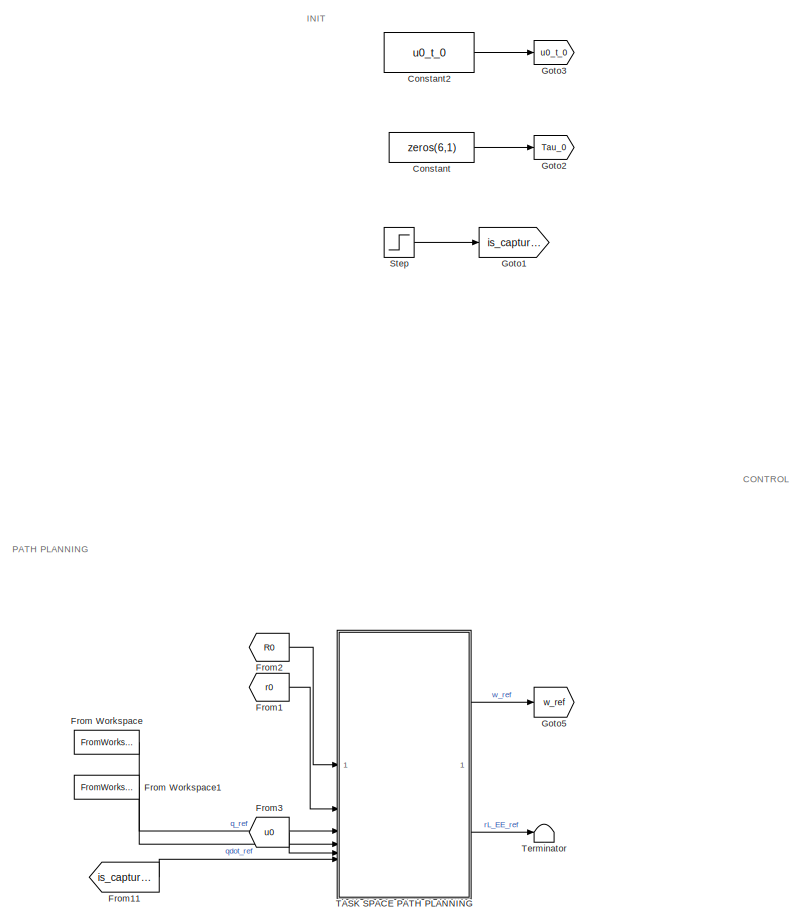
[diagram: root canvas - part 1/3, left side, full height]
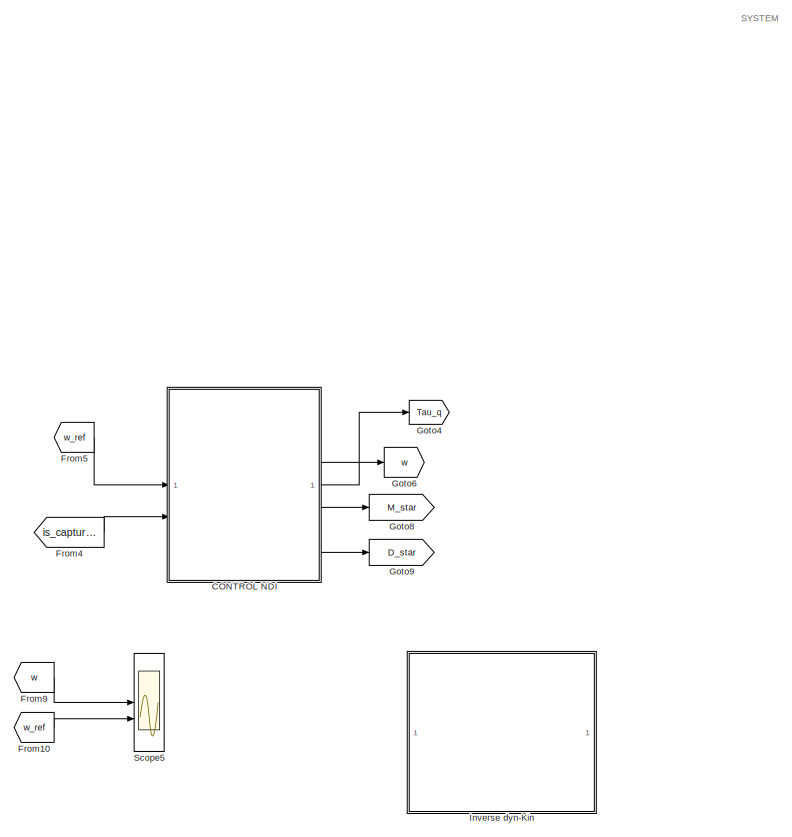
[diagram: root canvas - part 2/3, center side, full height]
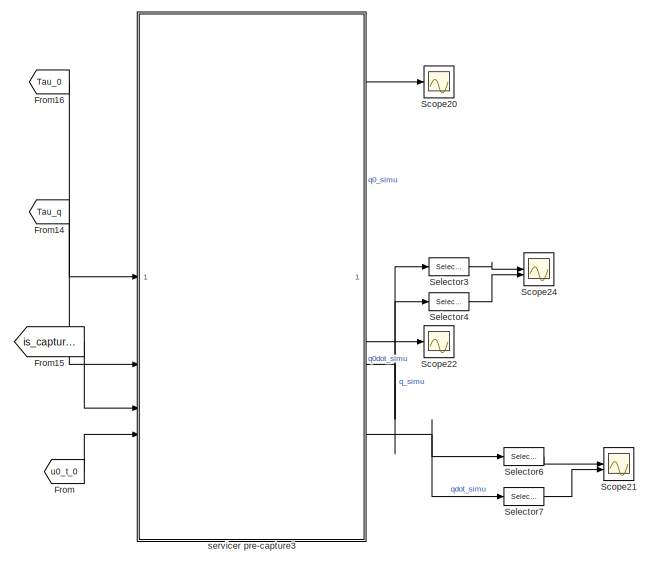
[diagram: root canvas - part 3/3, middle right region]
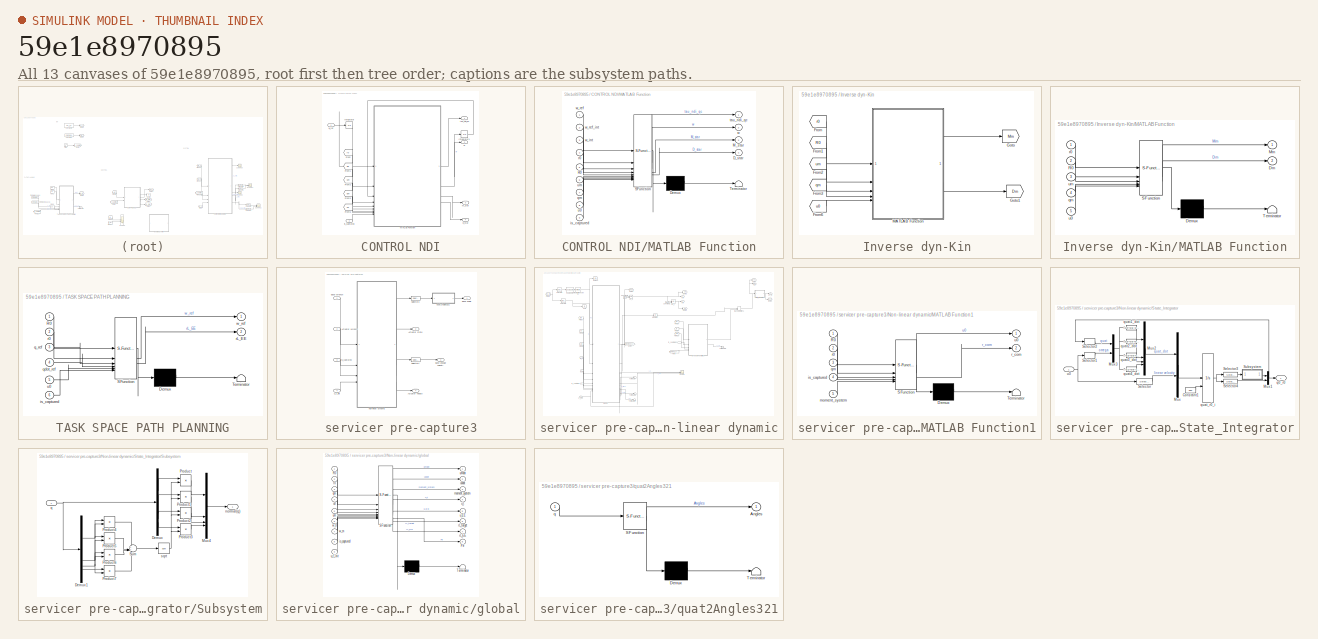
[diagram: thumbnail index - all 13 canvases of the model, root first then tree order]
MODEL slx_59e1e8970895
KIND model
CONFIG AbsTol = auto
CONFIG EnableMultiTasking = off
CONFIG FixedStep = auto
CONFIG MaxStep = auto
CONFIG MinStep = auto
CONFIG RelTol = 1e-3
CONFIG SampleTimeConstraint = Unconstrained
CONFIG SolverName = FixedStepAuto
CONFIG StartTime = 0.0
CONFIG StopTime = 3500
BLOCK [SubSystem] CONTROL NDI
BLOCK [Outport] CONTROL NDI/D_star
  Port = 4
BLOCK [From] CONTROL NDI/From
  GotoTag = r0
  TagVisibility = global
BLOCK [From] CONTROL NDI/From1
  GotoTag = R0
  TagVisibility = global
BLOCK [From] CONTROL NDI/From2
  GotoTag = um
  TagVisibility = global
BLOCK [From] CONTROL NDI/From3
  GotoTag = qm
  TagVisibility = global
BLOCK [From] CONTROL NDI/From6
  GotoTag = u0
  TagVisibility = global
BLOCK [Integrator] CONTROL NDI/Integrator
BLOCK [Integrator] CONTROL NDI/Integrator1
BLOCK [SubSystem] CONTROL NDI/MATLAB Function
  ErrorFcn = Stateflow.Translate.translate
  PermitHierarchicalResolution = ExplicitOnly
  SFBlockType = MATLAB Function
  TreatAsAtomicUnit = on
BLOCK [Demux] CONTROL NDI/MATLAB Function/ Demux 
  Outputs = 1
BLOCK [S-Function] CONTROL NDI/MATLAB Function/ SFunction 
  EnableBusSupport = on
  FunctionName = sf_sfun
  Parameters = robot_unc_post,robot_unc_pre
  PortCounts = [9 5]
  SFcnIsStateOwnerBlock = off
  SFunctionDeploymentMode = off
  Tag = Stateflow S-Function 2
BLOCK [Terminator] CONTROL NDI/MATLAB Function/ Terminator 
BLOCK [Outport] CONTROL NDI/MATLAB Function/D_star
  Port = 4
BLOCK [Outport] CONTROL NDI/MATLAB Function/M_star
  Port = 3
BLOCK [Inport] CONTROL NDI/MATLAB Function/R0
  Port = 5
BLOCK [Inport] CONTROL NDI/MATLAB Function/is_captured
  Port = 9
BLOCK [Inport] CONTROL NDI/MATLAB Function/qm
  Port = 7
BLOCK [Inport] CONTROL NDI/MATLAB Function/r0
  Port = 4
BLOCK [Outport] CONTROL NDI/MATLAB Function/tau_ndi_qc
BLOCK [Inport] CONTROL NDI/MATLAB Function/u0
  Port = 8
BLOCK [Inport] CONTROL NDI/MATLAB Function/um
  Port = 6
BLOCK [Outport] CONTROL NDI/MATLAB Function/w
  Port = 2
BLOCK [Inport] CONTROL NDI/MATLAB Function/w_int
  Port = 3
BLOCK [Inport] CONTROL NDI/MATLAB Function/w_ref
BLOCK [Inport] CONTROL NDI/MATLAB Function/w_ref_int
  Port = 2
BLOCK [Outport] CONTROL NDI/M_star
  Port = 3
BLOCK [Inport] CONTROL NDI/is_captured
  Port = 2
BLOCK [Outport] CONTROL NDI/tau_ndi_qc
BLOCK [Outport] CONTROL NDI/w
  Port = 2
BLOCK [Inport] CONTROL NDI/w_ref
BLOCK [Constant] Constant
  Value = zeros(6,1)
BLOCK [Constant] Constant2
  Value = u0_t_0
BLOCK [From] From
  GotoTag = u0_t_0
BLOCK [FromWorkspace] From Workspace
  VariableName = qm_ref_simu
BLOCK [FromWorkspace] From Workspace1
  VariableName = qmdot_ref_simu
BLOCK [From] From1
  GotoTag = r0
  TagVisibility = global
BLOCK [From] From10
  GotoTag = w_ref
BLOCK [From] From11
  GotoTag = is_captured
BLOCK [From] From14
  GotoTag = Tau_q
BLOCK [From] From15
  GotoTag = is_captured
BLOCK [From] From16
  GotoTag = Tau_0
BLOCK [From] From2
  GotoTag = R0
  TagVisibility = global
BLOCK [From] From3
  GotoTag = u0
  TagVisibility = global
BLOCK [From] From4
  GotoTag = is_captured
BLOCK [From] From5
  GotoTag = w_ref
BLOCK [From] From9
  GotoTag = w
BLOCK [Goto] Goto1
  GotoTag = is_captured
BLOCK [Goto] Goto2
  GotoTag = Tau_0
BLOCK [Goto] Goto3
  GotoTag = u0_t_0
BLOCK [Goto] Goto4
  GotoTag = Tau_q
BLOCK [Goto] Goto5
  GotoTag = w_ref
BLOCK [Goto] Goto6
  GotoTag = w
BLOCK [Goto] Goto8
  GotoTag = M_star
BLOCK [Goto] Goto9
  GotoTag = D_star
BLOCK [SubSystem] Inverse dyn-Kin
  Commented = on
BLOCK [From] Inverse dyn-Kin/From
  GotoTag = r0
  TagVisibility = global
BLOCK [From] Inverse dyn-Kin/From1
  GotoTag = R0
  TagVisibility = global
BLOCK [From] Inverse dyn-Kin/From2
  GotoTag = um
  TagVisibility = global
BLOCK [From] Inverse dyn-Kin/From3
  GotoTag = qm
  TagVisibility = global
BLOCK [From] Inverse dyn-Kin/From6
  GotoTag = u0
  TagVisibility = global
BLOCK [Goto] Inverse dyn-Kin/Goto
  GotoTag = Mm
  TagVisibility = global
BLOCK [Goto] Inverse dyn-Kin/Goto1
  GotoTag = Dm
  TagVisibility = global
BLOCK [SubSystem] Inverse dyn-Kin/MATLAB Function
  ErrorFcn = Stateflow.Translate.translate
  PermitHierarchicalResolution = ExplicitOnly
  SFBlockType = MATLAB Function
  TreatAsAtomicUnit = on
BLOCK [Demux] Inverse dyn-Kin/MATLAB Function/ Demux 
  Outputs = 1
BLOCK [S-Function] Inverse dyn-Kin/MATLAB Function/ SFunction 
  EnableBusSupport = on
  FunctionName = sf_sfun
  Parameters = robot_unc
  PortCounts = [5 3]
  SFcnIsStateOwnerBlock = off
  SFunctionDeploymentMode = off
  Tag = Stateflow S-Function 1
BLOCK [Terminator] Inverse dyn-Kin/MATLAB Function/ Terminator 
BLOCK [Outport] Inverse dyn-Kin/MATLAB Function/Dm
  Port = 2
  VectorParamsAs1DForOutWhenUnconnected = off
BLOCK [Outport] Inverse dyn-Kin/MATLAB Function/Mm
  VectorParamsAs1DForOutWhenUnconnected = off
BLOCK [Inport] Inverse dyn-Kin/MATLAB Function/R0
  Port = 2
BLOCK [Inport] Inverse dyn-Kin/MATLAB Function/qm
  Port = 4
BLOCK [Inport] Inverse dyn-Kin/MATLAB Function/r0
BLOCK [Inport] Inverse dyn-Kin/MATLAB Function/u0
  Port = 5
BLOCK [Inport] Inverse dyn-Kin/MATLAB Function/um
  Port = 3
BLOCK [Scope] Scope20
  Floating = off
  NumInputPorts = 1
  ScopeSpecificationString = Simulink.scopes.TimeScopeBlockCfg('CurrentConfiguration', extmgr.ConfigurationSet(extmgr.Configuration('Core','General UI',true),extmgr.Configuration('Core','Source UI',true),extmgr.Configuration('Sources','WiredSimulink',true,'DataLoggingVariableName','ScopeData17'),extmgr.Configuration('Visuals','Time Domain',true,'SerializedDisplays',{struct('MinYLimReal','-0.46504','MaxYLimReal','0.14301','YLa...<+1393ch>
BLOCK [Scope] Scope21
  Floating = off
  NumInputPorts = 2
  ScopeSpecificationString = Simulink.scopes.TimeScopeBlockCfg('CurrentConfiguration', extmgr.ConfigurationSet(extmgr.Configuration('Core','General UI',true),extmgr.Configuration('Core','Source UI',true),extmgr.Configuration('Sources','WiredSimulink',true,'DataLoggingVariableName','ScopeData2'),extmgr.Configuration('Visuals','Time Domain',true,'SerializedDisplays',{struct('MinYLimReal','-1183902.62281','MaxYLimReal','10653502...<+2206ch>
BLOCK [Scope] Scope22
  Floating = off
  NumInputPorts = 1
  ScopeSpecificationString = Simulink.scopes.TimeScopeBlockCfg('CurrentConfiguration', extmgr.ConfigurationSet(extmgr.Configuration('Core','General UI',true),extmgr.Configuration('Core','Source UI',true),extmgr.Configuration('Sources','WiredSimulink',true,'DataLoggingVariableName','ScopeData20'),extmgr.Configuration('Visuals','Time Domain',true,'SerializedDisplays',{struct('MinYLimReal','-0.000007','MaxYLimReal','0.000005','Y...<+1444ch>
BLOCK [Scope] Scope24
  Floating = off
  NumInputPorts = 2
  ScopeSpecificationString = Simulink.scopes.TimeScopeBlockCfg('CurrentConfiguration', extmgr.ConfigurationSet(extmgr.Configuration('Core','General UI',true),extmgr.Configuration('Core','Source UI',true),extmgr.Configuration('Sources','WiredSimulink',true,'DataLoggingVariableName','ScopeData1'),extmgr.Configuration('Visuals','Time Domain',true,'SerializedDisplays',{struct('MinYLimReal','-937.50116','MaxYLimReal','8437.51043',...<+2139ch>
BLOCK [Scope] Scope5
  Floating = off
  NumInputPorts = 2
  ScopeSpecificationString = Simulink.scopes.TimeScopeBlockCfg('CurrentConfiguration', extmgr.ConfigurationSet(extmgr.Configuration('Core','General UI',true),extmgr.Configuration('Core','Source UI',true),extmgr.Configuration('Sources','WiredSimulink',true,'DataLoggingVariableName','ScopeData1'),extmgr.Configuration('Visuals','Time Domain',true,'SerializedDisplays',{struct('MinYLimReal','-0.00051','MaxYLimReal','0.00028','YLab...<+2106ch>
BLOCK [Selector] Selector3
  IndexOptions = Index vector (dialog)
  Indices = [1:dim_r]
  OutputSizes = 1
BLOCK [Selector] Selector4
  IndexOptions = Index vector (dialog)
  Indices = [dim_r+1:dim_q]
  OutputSizes = 1
BLOCK [Selector] Selector6
  IndexOptions = Index vector (dialog)
  Indices = [1:dim_r]
  OutputSizes = 1
BLOCK [Selector] Selector7
  IndexOptions = Index vector (dialog)
  Indices = [dim_r+1:dim_q]
  OutputSizes = 1
BLOCK [Step] Step
  SampleTime = 0
  Time = 2050
BLOCK [SubSystem] TASK SPACE PATH PLANNING
  ErrorFcn = Stateflow.Translate.translate
  PermitHierarchicalResolution = ExplicitOnly
  SFBlockType = MATLAB Function
  TreatAsAtomicUnit = on
BLOCK [Demux] TASK SPACE PATH PLANNING/ Demux 
  Outputs = 1
BLOCK [S-Function] TASK SPACE PATH PLANNING/ SFunction 
  EnableBusSupport = on
  FunctionName = sf_sfun
  Parameters = robot_pre_sim
  PortCounts = [6 3]
  SFcnIsStateOwnerBlock = off
  SFunctionDeploymentMode = off
  Tag = Stateflow S-Function 3
BLOCK [Terminator] TASK SPACE PATH PLANNING/ Terminator 
BLOCK [Inport] TASK SPACE PATH PLANNING/R0
BLOCK [Inport] TASK SPACE PATH PLANNING/is_captured
  Port = 6
BLOCK [Inport] TASK SPACE PATH PLANNING/q_ref
  Port = 3
BLOCK [Inport] TASK SPACE PATH PLANNING/qdot_ref
  Port = 4
BLOCK [Inport] TASK SPACE PATH PLANNING/r0
  Port = 2
BLOCK [Outport] TASK SPACE PATH PLANNING/rL_EE
  Port = 2
BLOCK [Inport] TASK SPACE PATH PLANNING/u0
  Port = 5
BLOCK [Outport] TASK SPACE PATH PLANNING/w_ref
BLOCK [Terminator] Terminator
BLOCK [SubSystem] servicer pre-capture3
BLOCK [Inport] servicer pre-capture3/Actuator Wrench
  Port = 2
BLOCK [Outport] servicer pre-capture3/Actuator state
  Port = 2
  VectorParamsAs1DForOutWhenUnconnected = off
BLOCK [Outport] servicer pre-capture3/Actuator velocity
  Port = 4
  VectorParamsAs1DForOutWhenUnconnected = off
BLOCK [Inport] servicer pre-capture3/Base Wrench
BLOCK [Outport] servicer pre-capture3/Base angle
  VectorParamsAs1DForOutWhenUnconnected = off
BLOCK [Outport] servicer pre-capture3/Base angular velocity
  Port = 3
  VectorParamsAs1DForOutWhenUnconnected = off
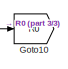
[diagram: servicer pre-capture3/Non-linear dynamic - part 1/3, top left region]
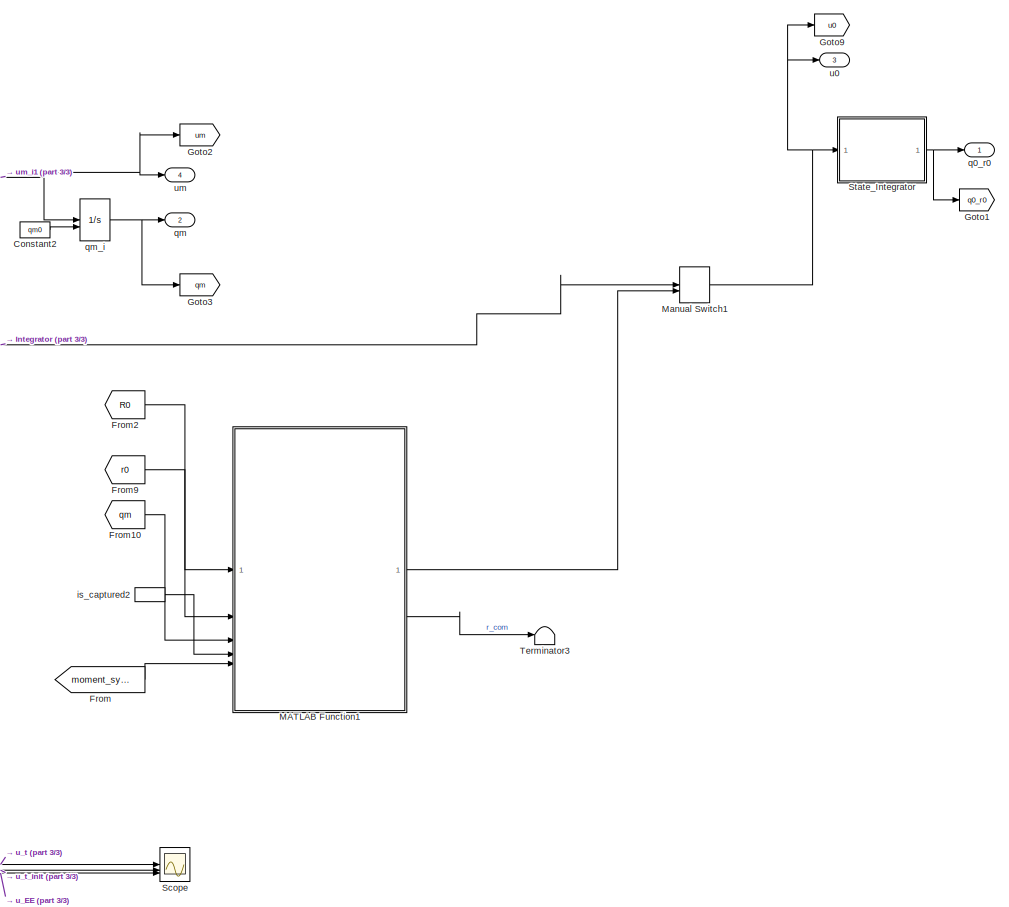
[diagram: servicer pre-capture3/Non-linear dynamic - part 2/3, middle right region]
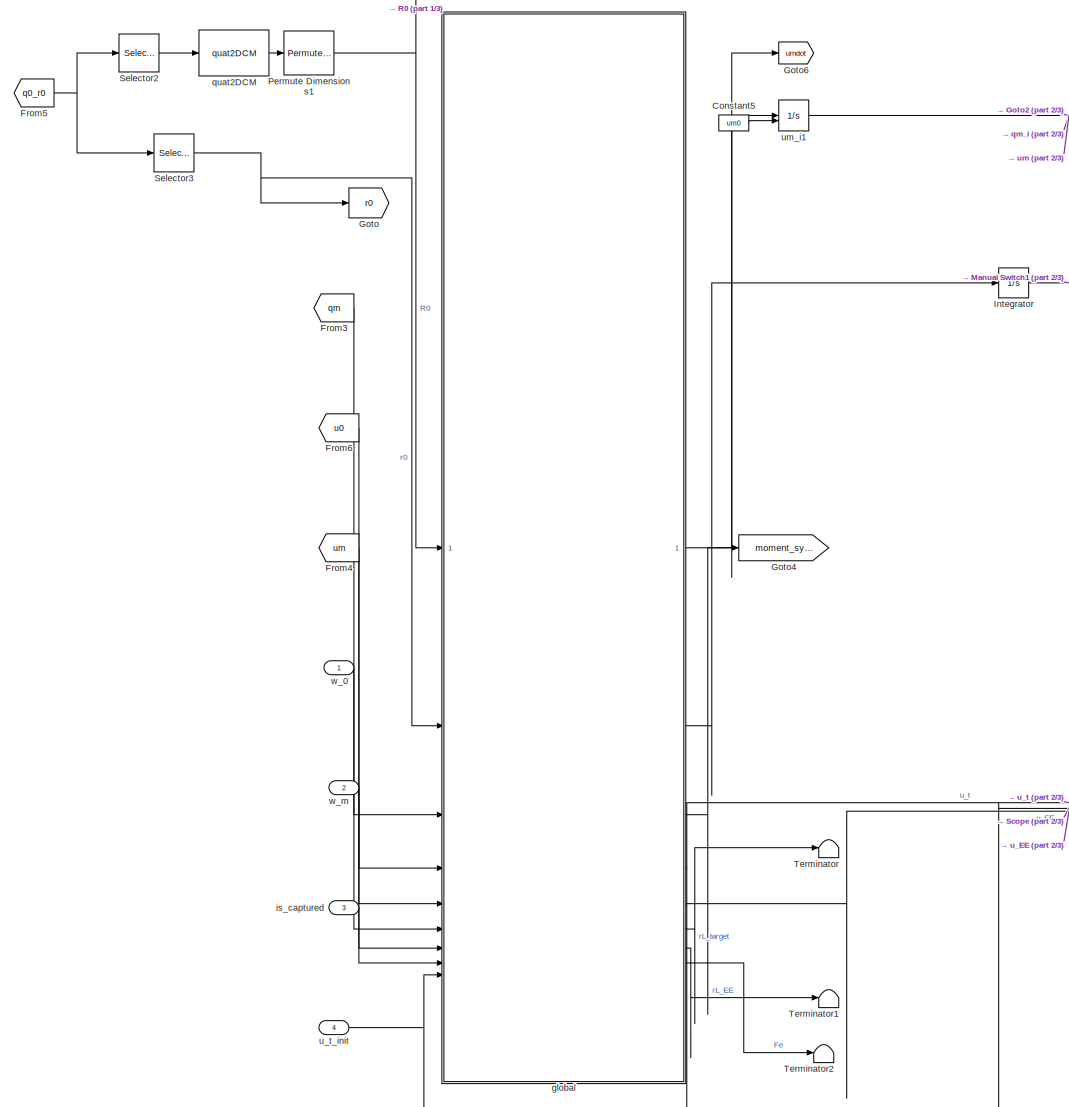
[diagram: servicer pre-capture3/Non-linear dynamic - part 3/3, left side, full height]
BLOCK [SubSystem] servicer pre-capture3/Non-linear dynamic
BLOCK [Constant] servicer pre-capture3/Non-linear dynamic/Constant2
  Value = qm0
BLOCK [Constant] servicer pre-capture3/Non-linear dynamic/Constant5
  Value = um0
BLOCK [From] servicer pre-capture3/Non-linear dynamic/From
  GotoTag = moment_system
BLOCK [From] servicer pre-capture3/Non-linear dynamic/From10
  GotoTag = qm
  TagVisibility = global
BLOCK [From] servicer pre-capture3/Non-linear dynamic/From2
  GotoTag = R0
  TagVisibility = global
BLOCK [From] servicer pre-capture3/Non-linear dynamic/From3
  GotoTag = qm
  TagVisibility = global
BLOCK [From] servicer pre-capture3/Non-linear dynamic/From4
  GotoTag = um
  TagVisibility = global
BLOCK [From] servicer pre-capture3/Non-linear dynamic/From5
  GotoTag = q0_r0
BLOCK [From] servicer pre-capture3/Non-linear dynamic/From6
  GotoTag = u0
  TagVisibility = global
BLOCK [From] servicer pre-capture3/Non-linear dynamic/From9
  GotoTag = r0
  TagVisibility = global
BLOCK [Goto] servicer pre-capture3/Non-linear dynamic/Goto
  GotoTag = r0
  TagVisibility = global
BLOCK [Goto] servicer pre-capture3/Non-linear dynamic/Goto1
  GotoTag = q0_r0
BLOCK [Goto] servicer pre-capture3/Non-linear dynamic/Goto10
  GotoTag = R0
  TagVisibility = global
BLOCK [Goto] servicer pre-capture3/Non-linear dynamic/Goto2
  GotoTag = um
  TagVisibility = global
BLOCK [Goto] servicer pre-capture3/Non-linear dynamic/Goto3
  GotoTag = qm
  TagVisibility = global
BLOCK [Goto] servicer pre-capture3/Non-linear dynamic/Goto4
  GotoTag = moment_system
BLOCK [Goto] servicer pre-capture3/Non-linear dynamic/Goto6
  GotoTag = umdot
  TagVisibility = global
BLOCK [Goto] servicer pre-capture3/Non-linear dynamic/Goto9
  GotoTag = u0
  TagVisibility = global
BLOCK [Integrator] servicer pre-capture3/Non-linear dynamic/Integrator
BLOCK [SubSystem] servicer pre-capture3/Non-linear dynamic/MATLAB Function1
  ErrorFcn = Stateflow.Translate.translate
  PermitHierarchicalResolution = ExplicitOnly
  SFBlockType = MATLAB Function
  TreatAsAtomicUnit = on
BLOCK [Demux] servicer pre-capture3/Non-linear dynamic/MATLAB Function1/ Demux 
  Outputs = 1
BLOCK [S-Function] servicer pre-capture3/Non-linear dynamic/MATLAB Function1/ SFunction 
  EnableBusSupport = on
  FunctionName = sf_sfun
  Parameters = robot_post_sim,robot_pre_sim
  PortCounts = [5 3]
  SFcnIsStateOwnerBlock = off
  SFunctionDeploymentMode = off
  Tag = Stateflow S-Function 14
BLOCK [Terminator] servicer pre-capture3/Non-linear dynamic/MATLAB Function1/ Terminator 
BLOCK [Inport] servicer pre-capture3/Non-linear dynamic/MATLAB Function1/R0
BLOCK [Inport] servicer pre-capture3/Non-linear dynamic/MATLAB Function1/is_captured
  Port = 4
BLOCK [Inport] servicer pre-capture3/Non-linear dynamic/MATLAB Function1/moment_system
  Port = 5
BLOCK [Inport] servicer pre-capture3/Non-linear dynamic/MATLAB Function1/qm
  Port = 3
BLOCK [Inport] servicer pre-capture3/Non-linear dynamic/MATLAB Function1/r0
  Port = 2
BLOCK [Outport] servicer pre-capture3/Non-linear dynamic/MATLAB Function1/r_com
  Port = 2
BLOCK [Outport] servicer pre-capture3/Non-linear dynamic/MATLAB Function1/u0
  VectorParamsAs1DForOutWhenUnconnected = off
BLOCK [ManualSwitch] servicer pre-capture3/Non-linear dynamic/Manual Switch1
  CurrentSetting = 0
BLOCK [PermuteDimensions] servicer pre-capture3/Non-linear dynamic/Permute Dimensions1
BLOCK [Scope] servicer pre-capture3/Non-linear dynamic/Scope
  Floating = off
  NumInputPorts = 3
  ScopeSpecificationString = Simulink.scopes.TimeScopeBlockCfg('CurrentConfiguration', extmgr.ConfigurationSet(extmgr.Configuration('Core','General UI',true),extmgr.Configuration('Core','Source UI',true),extmgr.Configuration('Sources','WiredSimulink',true,'DataLoggingVariableName','ScopeData18'),extmgr.Configuration('Visuals','Time Domain',true,'SerializedDisplays',{struct('MinYLimReal','-0.00051','MaxYLimReal','0.00028','YLa...<+2029ch>
BLOCK [Selector] servicer pre-capture3/Non-linear dynamic/Selector2
  IndexOptions = Index vector (dialog)
  Indices = [1:4]
  InputPortWidth = 7
  OutputSizes = 1
BLOCK [Selector] servicer pre-capture3/Non-linear dynamic/Selector3
  IndexOptions = Index vector (dialog)
  Indices = [5:7]
  InputPortWidth = 7
  OutputSizes = 1
BLOCK [SubSystem] servicer pre-capture3/Non-linear dynamic/State_Integrator
  AncestorBlock = SPART_Lib/Plant/State_Integrator
BLOCK [Constant] servicer pre-capture3/Non-linear dynamic/State_Integrator/Constant1
  Value = q00
BLOCK [Mux] servicer pre-capture3/Non-linear dynamic/State_Integrator/Mux
  DisplayOption = bar
  Inputs = 2
BLOCK [Mux] servicer pre-capture3/Non-linear dynamic/State_Integrator/Mux1
  DisplayOption = bar
  Inputs = 2
BLOCK [Mux] servicer pre-capture3/Non-linear dynamic/State_Integrator/Mux2
  DisplayOption = bar
BLOCK [Mux] servicer pre-capture3/Non-linear dynamic/State_Integrator/Mux3
  DisplayOption = bar
  Inputs = 2
BLOCK [Selector] servicer pre-capture3/Non-linear dynamic/State_Integrator/Selector
  IndexOptions = Index vector (dialog)
  Indices = [4:6]
  InputPortWidth = 6
  OutputSizes = 1
BLOCK [Selector] servicer pre-capture3/Non-linear dynamic/State_Integrator/Selector1
  IndexOptions = Index vector (dialog)
  Indices = [1:3]
  InputPortWidth = 6
  OutputSizes = 1
BLOCK [Selector] servicer pre-capture3/Non-linear dynamic/State_Integrator/Selector2
  IndexOptions = Index vector (dialog)
  Indices = [1:4]
  InputPortWidth = 7
  OutputSizes = 1
BLOCK [Selector] servicer pre-capture3/Non-linear dynamic/State_Integrator/Selector3
  IndexOptions = Index vector (dialog)
  Indices = [1:4]
  InputPortWidth = 7
  OutputSizes = 1
BLOCK [Selector] servicer pre-capture3/Non-linear dynamic/State_Integrator/Selector4
  IndexOptions = Index vector (dialog)
  Indices = [5:7]
  InputPortWidth = 7
  OutputSizes = 1
BLOCK [SubSystem] servicer pre-capture3/Non-linear dynamic/State_Integrator/Subsystem
BLOCK [Demux] servicer pre-capture3/Non-linear dynamic/State_Integrator/Subsystem/Demux
BLOCK [Demux] servicer pre-capture3/Non-linear dynamic/State_Integrator/Subsystem/Demux1
BLOCK [Mux] servicer pre-capture3/Non-linear dynamic/State_Integrator/Subsystem/Mux4
  DisplayOption = bar
BLOCK [Product] servicer pre-capture3/Non-linear dynamic/State_Integrator/Subsystem/Product
  Inputs = */
BLOCK [Product] servicer pre-capture3/Non-linear dynamic/State_Integrator/Subsystem/Product1
  Inputs = */
BLOCK [Product] servicer pre-capture3/Non-linear dynamic/State_Integrator/Subsystem/Product2
  Inputs = */
BLOCK [Product] servicer pre-capture3/Non-linear dynamic/State_Integrator/Subsystem/Product3
  Inputs = */
BLOCK [Product] servicer pre-capture3/Non-linear dynamic/State_Integrator/Subsystem/Product4
BLOCK [Product] servicer pre-capture3/Non-linear dynamic/State_Integrator/Subsystem/Product5
BLOCK [Product] servicer pre-capture3/Non-linear dynamic/State_Integrator/Subsystem/Product6
BLOCK [Product] servicer pre-capture3/Non-linear dynamic/State_Integrator/Subsystem/Product7
BLOCK [Sum] servicer pre-capture3/Non-linear dynamic/State_Integrator/Subsystem/Sum
  Inputs = 4
BLOCK [Outport] servicer pre-capture3/Non-linear dynamic/State_Integrator/Subsystem/normal(q)
  VectorParamsAs1DForOutWhenUnconnected = off
BLOCK [Inport] servicer pre-capture3/Non-linear dynamic/State_Integrator/Subsystem/q
BLOCK [Sqrt] servicer pre-capture3/Non-linear dynamic/State_Integrator/Subsystem/sqrt
  AlgorithmType = Newton-Raphson
BLOCK [Outport] servicer pre-capture3/Non-linear dynamic/State_Integrator/q0_r0
  VectorParamsAs1DForOutWhenUnconnected = off
BLOCK [Fcn] servicer pre-capture3/Non-linear dynamic/State_Integrator/quat1_dot
  Expr = (u[4]*u[5]-u[3]*u[6]+u[2]*u[7])/2
BLOCK [Fcn] servicer pre-capture3/Non-linear dynamic/State_Integrator/quat2_dot
  Expr = (u[3]*u[5]+u[4]*u[6]-u[1]*u[7])/2
BLOCK [Fcn] servicer pre-capture3/Non-linear dynamic/State_Integrator/quat3_dot
  Expr = (-u[2]*u[5]+u[1]*u[6]+u[4]*u[7])/2
BLOCK [Fcn] servicer pre-capture3/Non-linear dynamic/State_Integrator/quat4_dot
  Expr = (-u[1]*u[5]-u[2]*u[6]-u[3]*u[7])/2
BLOCK [Integrator] servicer pre-capture3/Non-linear dynamic/State_Integrator/quat_r0_i
  InitialConditionSource = external
BLOCK [Inport] servicer pre-capture3/Non-linear dynamic/State_Integrator/u0
BLOCK [Terminator] servicer pre-capture3/Non-linear dynamic/Terminator
BLOCK [Terminator] servicer pre-capture3/Non-linear dynamic/Terminator1
BLOCK [Terminator] servicer pre-capture3/Non-linear dynamic/Terminator2
BLOCK [Terminator] servicer pre-capture3/Non-linear dynamic/Terminator3
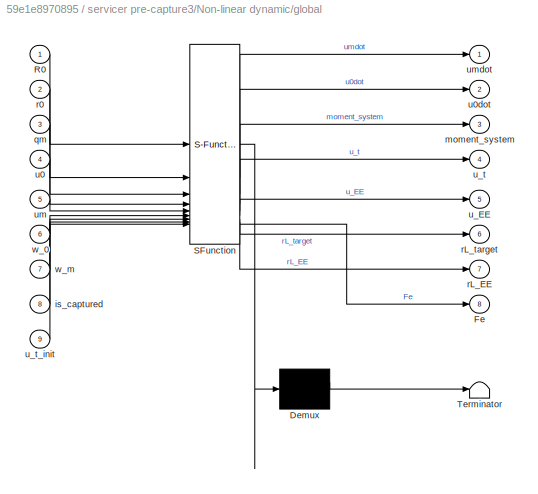
BLOCK [SubSystem] servicer pre-capture3/Non-linear dynamic/global
  ErrorFcn = Stateflow.Translate.translate
  PermitHierarchicalResolution = ExplicitOnly
  SFBlockType = MATLAB Function
  TreatAsAtomicUnit = on
BLOCK [Demux] servicer pre-capture3/Non-linear dynamic/global/ Demux 
  Outputs = 1
BLOCK [S-Function] servicer pre-capture3/Non-linear dynamic/global/ SFunction 
  EnableBusSupport = on
  FunctionName = sf_sfun
  Parameters = robot_pre_sim,target_sim
  PortCounts = [9 9]
  SFcnIsStateOwnerBlock = off
  SFunctionDeploymentMode = off
  Tag = Stateflow S-Function 17
BLOCK [Terminator] servicer pre-capture3/Non-linear dynamic/global/ Terminator 
BLOCK [Outport] servicer pre-capture3/Non-linear dynamic/global/Fe
  Port = 8
BLOCK [Inport] servicer pre-capture3/Non-linear dynamic/global/R0
BLOCK [Inport] servicer pre-capture3/Non-linear dynamic/global/is_captured
  Port = 8
BLOCK [Outport] servicer pre-capture3/Non-linear dynamic/global/moment_system
  Port = 3
BLOCK [Inport] servicer pre-capture3/Non-linear dynamic/global/qm
  Port = 3
BLOCK [Inport] servicer pre-capture3/Non-linear dynamic/global/r0
  Port = 2
BLOCK [Outport] servicer pre-capture3/Non-linear dynamic/global/rL_EE
  Port = 7
BLOCK [Outport] servicer pre-capture3/Non-linear dynamic/global/rL_target
  Port = 6
BLOCK [Inport] servicer pre-capture3/Non-linear dynamic/global/u0
  Port = 4
BLOCK [Outport] servicer pre-capture3/Non-linear dynamic/global/u0dot
  Port = 2
BLOCK [Outport] servicer pre-capture3/Non-linear dynamic/global/u_EE
  Port = 5
BLOCK [Outport] servicer pre-capture3/Non-linear dynamic/global/u_t
  Port = 4
BLOCK [Inport] servicer pre-capture3/Non-linear dynamic/global/u_t_init
  Port = 9
BLOCK [Inport] servicer pre-capture3/Non-linear dynamic/global/um
  Port = 5
BLOCK [Outport] servicer pre-capture3/Non-linear dynamic/global/umdot
  VectorParamsAs1DForOutWhenUnconnected = off
BLOCK [Inport] servicer pre-capture3/Non-linear dynamic/global/w_0
  Port = 6
BLOCK [Inport] servicer pre-capture3/Non-linear dynamic/global/w_m
  Port = 7
BLOCK [Inport] servicer pre-capture3/Non-linear dynamic/is_captured
  Port = 3
BLOCK [InportShadow] servicer pre-capture3/Non-linear dynamic/is_captured2
  Port = 3
BLOCK [Outport] servicer pre-capture3/Non-linear dynamic/q0_r0
  VarSizeSig = No
  VectorParamsAs1DForOutWhenUnconnected = off
BLOCK [Outport] servicer pre-capture3/Non-linear dynamic/qm
  Port = 2
  VectorParamsAs1DForOutWhenUnconnected = off
BLOCK [Integrator] servicer pre-capture3/Non-linear dynamic/qm_i
  InitialConditionSource = external
BLOCK [Reference] servicer pre-capture3/Non-linear dynamic/quat2DCM  REF=SPART_Lib/Components/Matrices/quat2DCM
  SourceBlock = SPART_Lib/Components/Matrices/quat2DCM
  SourceType = SubSystem
BLOCK [Outport] servicer pre-capture3/Non-linear dynamic/u0
  Port = 3
  VarSizeSig = No
  VectorParamsAs1DForOutWhenUnconnected = off
BLOCK [Inport] servicer pre-capture3/Non-linear dynamic/u_t_init
  Port = 4
BLOCK [Outport] servicer pre-capture3/Non-linear dynamic/um
  Port = 4
  VectorParamsAs1DForOutWhenUnconnected = off
BLOCK [Integrator] servicer pre-capture3/Non-linear dynamic/um_i1
  InitialConditionSource = external
BLOCK [Inport] servicer pre-capture3/Non-linear dynamic/w_0
BLOCK [Inport] servicer pre-capture3/Non-linear dynamic/w_m
  Port = 2
BLOCK [Selector] servicer pre-capture3/Selector1
  IndexOptions = Index vector (dialog)
  Indices = [1:3]
  OutputSizes = 1
BLOCK [Selector] servicer pre-capture3/Selector3
  IndexOptions = Index vector (dialog)
  Indices = [1:4]
  OutputSizes = 1
BLOCK [Inport] servicer pre-capture3/is_captured
  Port = 3
BLOCK [SubSystem] servicer pre-capture3/quat2Angles321
  ErrorFcn = Stateflow.Translate.translate
  PermitHierarchicalResolution = ExplicitOnly
  SFBlockType = MATLAB Function
  TreatAsAtomicUnit = on
BLOCK [Demux] servicer pre-capture3/quat2Angles321/ Demux 
  Outputs = 1
BLOCK [S-Function] servicer pre-capture3/quat2Angles321/ SFunction 
  EnableBusSupport = on
  FunctionName = sf_sfun
  PortCounts = [1 2]
  SFcnIsStateOwnerBlock = off
  SFunctionDeploymentMode = off
  Tag = Stateflow S-Function 19
BLOCK [Terminator] servicer pre-capture3/quat2Angles321/ Terminator 
BLOCK [Outport] servicer pre-capture3/quat2Angles321/Angles
  VectorParamsAs1DForOutWhenUnconnected = off
BLOCK [Inport] servicer pre-capture3/quat2Angles321/q
BLOCK [Inport] servicer pre-capture3/u_t_init
  Port = 4
ANNOTATION (root): CONTROL
ANNOTATION (root): INIT
ANNOTATION (root): PATH PLANNING
ANNOTATION (root): SYSTEM
LINE CONTROL NDI/From1:1 -> CONTROL NDI/MATLAB Function:5
LINE CONTROL NDI/From2:1 -> CONTROL NDI/MATLAB Function:6
LINE CONTROL NDI/From3:1 -> CONTROL NDI/MATLAB Function:7
LINE CONTROL NDI/From6:1 -> CONTROL NDI/MATLAB Function:8
LINE CONTROL NDI/From:1 -> CONTROL NDI/MATLAB Function:4
LINE CONTROL NDI/Integrator1:1 -> CONTROL NDI/MATLAB Function:3
LINE CONTROL NDI/Integrator:1 -> CONTROL NDI/MATLAB Function:2
LINE CONTROL NDI/MATLAB Function:1 -> CONTROL NDI/tau_ndi_qc:1
NET CONTROL NDI/MATLAB Function:2 -> CONTROL NDI/Integrator1:1, CONTROL NDI/w:1
LINE CONTROL NDI/MATLAB Function:3 -> CONTROL NDI/M_star:1
LINE CONTROL NDI/MATLAB Function:4 -> CONTROL NDI/D_star:1
LINE CONTROL NDI/is_captured:1 -> CONTROL NDI/MATLAB Function:9
NET CONTROL NDI/w_ref:1 -> CONTROL NDI/Integrator:1, CONTROL NDI/MATLAB Function:1
LINE CONTROL NDI:1 -> Goto4:1
LINE CONTROL NDI:2 -> Goto6:1
LINE CONTROL NDI:3 -> Goto8:1
LINE CONTROL NDI:4 -> Goto9:1
LINE Constant2:1 -> Goto3:1
LINE Constant:1 -> Goto2:1
LINE From Workspace1:1 -> TASK SPACE PATH PLANNING:4
LINE From Workspace:1 -> TASK SPACE PATH PLANNING:3
LINE From10:1 -> Scope5:2
LINE From11:1 -> TASK SPACE PATH PLANNING:6
LINE From14:1 -> servicer pre-capture3:2
LINE From15:1 -> servicer pre-capture3:3
LINE From16:1 -> servicer pre-capture3:1
LINE From1:1 -> TASK SPACE PATH PLANNING:2
LINE From2:1 -> TASK SPACE PATH PLANNING:1
LINE From3:1 -> TASK SPACE PATH PLANNING:5
LINE From4:1 -> CONTROL NDI:2
LINE From5:1 -> CONTROL NDI:1
LINE From9:1 -> Scope5:1
LINE From:1 -> servicer pre-capture3:4
LINE Inverse dyn-Kin/From1:1 -> Inverse dyn-Kin/MATLAB Function:2
LINE Inverse dyn-Kin/From2:1 -> Inverse dyn-Kin/MATLAB Function:3
LINE Inverse dyn-Kin/From3:1 -> Inverse dyn-Kin/MATLAB Function:4
LINE Inverse dyn-Kin/From6:1 -> Inverse dyn-Kin/MATLAB Function:5
LINE Inverse dyn-Kin/From:1 -> Inverse dyn-Kin/MATLAB Function:1
LINE Inverse dyn-Kin/MATLAB Function:1 -> Inverse dyn-Kin/Goto:1
LINE Inverse dyn-Kin/MATLAB Function:2 -> Inverse dyn-Kin/Goto1:1
LINE Selector3:1 -> Scope24:1
LINE Selector4:1 -> Scope24:2
LINE Selector6:1 -> Scope21:1
LINE Selector7:1 -> Scope21:2
LINE Step:1 -> Goto1:1
LINE TASK SPACE PATH PLANNING:1 -> Goto5:1
LINE TASK SPACE PATH PLANNING:2 -> Terminator:1
LINE servicer pre-capture3/Actuator Wrench:1 -> servicer pre-capture3/Non-linear dynamic:2
LINE servicer pre-capture3/Base Wrench:1 -> servicer pre-capture3/Non-linear dynamic:1
LINE servicer pre-capture3/Non-linear dynamic/Constant2:1 -> servicer pre-capture3/Non-linear dynamic/qm_i:2
LINE servicer pre-capture3/Non-linear dynamic/Constant5:1 -> servicer pre-capture3/Non-linear dynamic/um_i1:2
LINE servicer pre-capture3/Non-linear dynamic/From10:1 -> servicer pre-capture3/Non-linear dynamic/MATLAB Function1:3
LINE servicer pre-capture3/Non-linear dynamic/From2:1 -> servicer pre-capture3/Non-linear dynamic/MATLAB Function1:1
LINE servicer pre-capture3/Non-linear dynamic/From3:1 -> servicer pre-capture3/Non-linear dynamic/global:3
LINE servicer pre-capture3/Non-linear dynamic/From4:1 -> servicer pre-capture3/Non-linear dynamic/global:5
NET servicer pre-capture3/Non-linear dynamic/From5:1 -> servicer pre-capture3/Non-linear dynamic/Selector2:1, servicer pre-capture3/Non-linear dynamic/Selector3:1
LINE servicer pre-capture3/Non-linear dynamic/From6:1 -> servicer pre-capture3/Non-linear dynamic/global:4
LINE servicer pre-capture3/Non-linear dynamic/From9:1 -> servicer pre-capture3/Non-linear dynamic/MATLAB Function1:2
LINE servicer pre-capture3/Non-linear dynamic/From:1 -> servicer pre-capture3/Non-linear dynamic/MATLAB Function1:5
LINE servicer pre-capture3/Non-linear dynamic/Integrator:1 -> servicer pre-capture3/Non-linear dynamic/Manual Switch1:1
LINE servicer pre-capture3/Non-linear dynamic/MATLAB Function1:1 -> servicer pre-capture3/Non-linear dynamic/Manual Switch1:2
LINE servicer pre-capture3/Non-linear dynamic/MATLAB Function1:2 -> servicer pre-capture3/Non-linear dynamic/Terminator3:1
NET servicer pre-capture3/Non-linear dynamic/Manual Switch1:1 -> servicer pre-capture3/Non-linear dynamic/Goto9:1, servicer pre-capture3/Non-linear dynamic/State_Integrator:1, servicer pre-capture3/Non-linear dynamic/u0:1
NET servicer pre-capture3/Non-linear dynamic/Permute Dimensions1:1 -> servicer pre-capture3/Non-linear dynamic/Goto10:1, servicer pre-capture3/Non-linear dynamic/global:1
LINE servicer pre-capture3/Non-linear dynamic/Selector2:1 -> servicer pre-capture3/Non-linear dynamic/quat2DCM:1
NET servicer pre-capture3/Non-linear dynamic/Selector3:1 -> servicer pre-capture3/Non-linear dynamic/Goto:1, servicer pre-capture3/Non-linear dynamic/global:2
NET servicer pre-capture3/Non-linear dynamic/State_Integrator:1 -> servicer pre-capture3/Non-linear dynamic/Goto1:1, servicer pre-capture3/Non-linear dynamic/q0_r0:1
NET servicer pre-capture3/Non-linear dynamic/global:1 -> servicer pre-capture3/Non-linear dynamic/Goto6:1, servicer pre-capture3/Non-linear dynamic/um_i1:1
LINE servicer pre-capture3/Non-linear dynamic/global:2 -> servicer pre-capture3/Non-linear dynamic/Integrator:1
LINE servicer pre-capture3/Non-linear dynamic/global:3 -> servicer pre-capture3/Non-linear dynamic/Goto4:1
LINE servicer pre-capture3/Non-linear dynamic/global:4 -> servicer pre-capture3/Non-linear dynamic/Scope:1
LINE servicer pre-capture3/Non-linear dynamic/global:5 -> servicer pre-capture3/Non-linear dynamic/Scope:3
LINE servicer pre-capture3/Non-linear dynamic/global:6 -> servicer pre-capture3/Non-linear dynamic/Terminator:1
LINE servicer pre-capture3/Non-linear dynamic/global:7 -> servicer pre-capture3/Non-linear dynamic/Terminator1:1
LINE servicer pre-capture3/Non-linear dynamic/global:8 -> servicer pre-capture3/Non-linear dynamic/Terminator2:1
LINE servicer pre-capture3/Non-linear dynamic/is_captured2:1 -> servicer pre-capture3/Non-linear dynamic/MATLAB Function1:4
LINE servicer pre-capture3/Non-linear dynamic/is_captured:1 -> servicer pre-capture3/Non-linear dynamic/global:8
NET servicer pre-capture3/Non-linear dynamic/qm_i:1 -> servicer pre-capture3/Non-linear dynamic/Goto3:1, servicer pre-capture3/Non-linear dynamic/qm:1
LINE servicer pre-capture3/Non-linear dynamic/quat2DCM:1 -> servicer pre-capture3/Non-linear dynamic/Permute Dimensions1:1
NET servicer pre-capture3/Non-linear dynamic/u_t_init:1 -> servicer pre-capture3/Non-linear dynamic/Scope:2, servicer pre-capture3/Non-linear dynamic/global:9
NET servicer pre-capture3/Non-linear dynamic/um_i1:1 -> servicer pre-capture3/Non-linear dynamic/Goto2:1, servicer pre-capture3/Non-linear dynamic/qm_i:1, servicer pre-capture3/Non-linear dynamic/um:1
LINE servicer pre-capture3/Non-linear dynamic/w_0:1 -> servicer pre-capture3/Non-linear dynamic/global:6
LINE servicer pre-capture3/Non-linear dynamic/w_m:1 -> servicer pre-capture3/Non-linear dynamic/global:7
LINE servicer pre-capture3/Non-linear dynamic:1 -> servicer pre-capture3/Selector3:1
LINE servicer pre-capture3/Non-linear dynamic:2 -> servicer pre-capture3/Actuator state:1
LINE servicer pre-capture3/Non-linear dynamic:3 -> servicer pre-capture3/Selector1:1
LINE servicer pre-capture3/Non-linear dynamic:4 -> servicer pre-capture3/Actuator velocity:1
LINE servicer pre-capture3/Selector1:1 -> servicer pre-capture3/Base angular velocity:1
LINE servicer pre-capture3/Selector3:1 -> servicer pre-capture3/quat2Angles321:1
LINE servicer pre-capture3/is_captured:1 -> servicer pre-capture3/Non-linear dynamic:3
LINE servicer pre-capture3/quat2Angles321:1 -> servicer pre-capture3/Base angle:1
LINE servicer pre-capture3/u_t_init:1 -> servicer pre-capture3/Non-linear dynamic:4
LINE servicer pre-capture3:1 -> Scope20:1
NET servicer pre-capture3:2 -> Selector3:1, Selector4:1
LINE servicer pre-capture3:3 -> Scope22:1
NET servicer pre-capture3:4 -> Selector6:1, Selector7:1
note: NET lines group one-source signal fan-out (src -> all destinations, sorted); 1:1 wires keep LINE
CHART Inverse dyn-Kin/MATLAB Function states=1 transitions=1
  STATE_LABEL 'eML_blk_kernel()'
  STATE_LABEL 'SCRIPT:\nfunction [Mm,Dm]  = fcn(r0,R0,um,qm,u0,robot_unc)\n\n\n\n\n\n%--- System_dimension ---%\ndim_0 = 6;\ndim_m = robot_unc.n_q;\ndim_f = robot_unc.flexs.nb_mode; \n\n%--- Kinematics ---%\n%Kinematics\n[~,RL,rJ,rL,e,g]    =   Kinematics(R0,r0,qm,robot_unc);\n\n%Diferential Kinematics\n[Bij,Bi0,P0,pm]     =   DiffKinematics(R0,r0,rL,e,g,robot_unc);\n%Velocities\n[t0,tL]             =   Velocities(Bij,Bi0,P0,pm,u0...<+935ch>'
CHART CONTROL NDI/MATLAB Function states=1 transitions=1
  STATE_LABEL 'eML_blk_kernel()'
  STATE_LABEL 'SCRIPT:\nfunction [tau_ndi_qc,w,M_star,D_star]= fcn(w_ref,w_ref_int,w_int,r0,R0,um,qm,u0,robot_unc_pre, robot_unc_post, is_captured)\n    \n    %-- Dimensions --%\n    dim_0 = 6;\n    dim_q = robot_unc_pre.n_q;\n    dim_r = robot_unc_pre.dimensions.dim_r;\n    dim_m = robot_unc_pre.dimensions.dim_m;\n\n\n    if is_captured \n\n         %--- Kinematics ---%\n        %Kinematics\n        [~,RL,rJ,rL,e,g]    =   K...<+3608ch>'
CHART TASK SPACE PATH PLANNING states=1 transitions=1
  STATE_LABEL 'eML_blk_kernel()'
  STATE_LABEL 'SCRIPT:\nfunction [w_ref,rL_EE]= fcn(R0,r0,q_ref,qdot_ref,u0, is_captured,robot_pre_sim)\n\nqm = [zeros(robot_pre_sim.dimensions.dim_r,1);q_ref];\nqmdot = [0*150*ones(robot_pre_sim.dimensions.dim_r,1);qdot_ref];\n\n\n\n[~,RL,~,rL,e,g]    =   Kinematics(R0,r0,qm,robot_pre_sim);\n%Diferential Kinematics\n[Bij,Bi0,P0,pm]     =   DiffKinematics(R0,r0,rL,e,g,robot_pre_sim);\n[t0,tL]             =   Velocities(Bij...<+677ch>'
CHART servicer pre-capture3/Non-linear dynamic/MATLAB Function1 states=1 transitions=1
  STATE_LABEL 'eML_blk_kernel()'
  STATE_LABEL 'SCRIPT:\nfunction [u0,r_com] = ddX(R0,r0,qm,is_captured,moment_system,robot_post_sim,robot_pre_sim)\n\n% :inputs:\n%   * R0 -- Rotation matrix from the base-link CCS to the inertial CCS -- [3x3].\n%   * r0 -- Position of the base-link center-of-mass with respect to the origin of the inertial frame,\n%projected in the inertial CCS -- [3x1].\n%   * qm -- Displacements of the active joints -- [n_qx1].\n%   *...<+1656ch>'
CHART servicer pre-capture3/Non-linear dynamic/global states=1 transitions=1
  STATE_LABEL 'eML_blk_kernel()'
  STATE_LABEL 'SCRIPT:\nfunction [umdot,u0dot,moment_system,u_t,u_EE,rL_target,rL_EE,Fe] = ddX(R0,r0,qm,u0,um,w_0,w_m,is_captured,u_t_init,robot_pre_sim,target_sim)\n\n% :inputs:\n%   * R0 -- Rotation matrix from the base-link CCS to the inertial CCS -- [3x3].\n%   * r0 -- Position of the base-link center-of-mass with respect to the origin of the inertial frame,\n%projected in the inertial CCS -- [3x1].\n%   * qm -- Di...<+3161ch>'
CHART servicer pre-capture3/quat2Angles321 states=1 transitions=1
  STATE_LABEL 'eML_blk_kernel()'
  STATE_LABEL 'SCRIPT:\nfunction Angles = quat2Angles321(q)\n%Convert the quaternion to Euler angles (321 sequence), x-phi, y-theta, z-psi.\n%\n%Uses the functions under the Utilities folder\n\n\nAngles = quat_Angles321(q);\n\nend'
CHART  states=0 transitions=0
CHART  states=0 transitions=0
CHART  states=0 transitions=0
CHART  states=0 transitions=0
CHART  states=0 transitions=0
CHART  states=0 transitions=0
